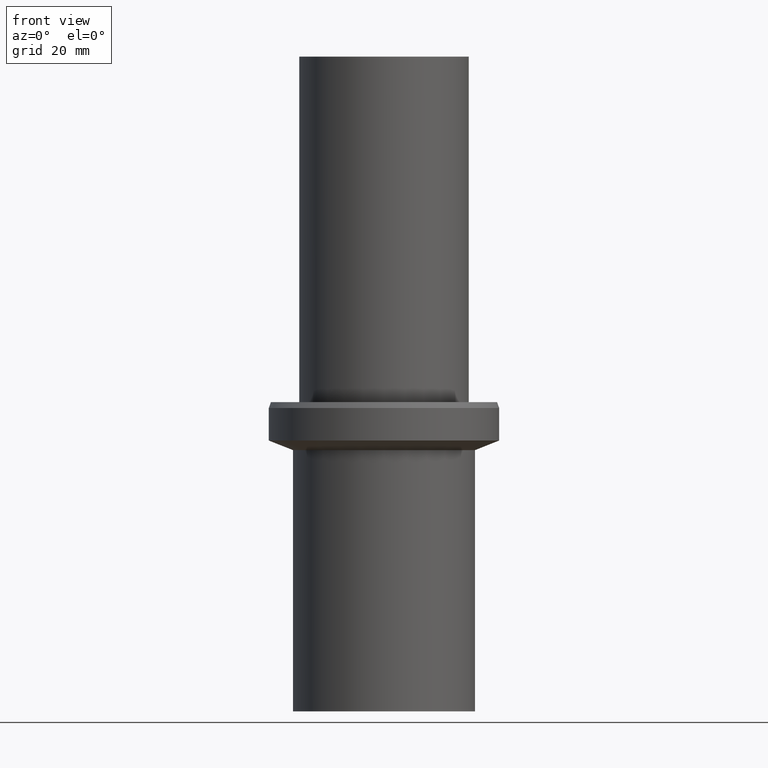
[diagram: clean part render]
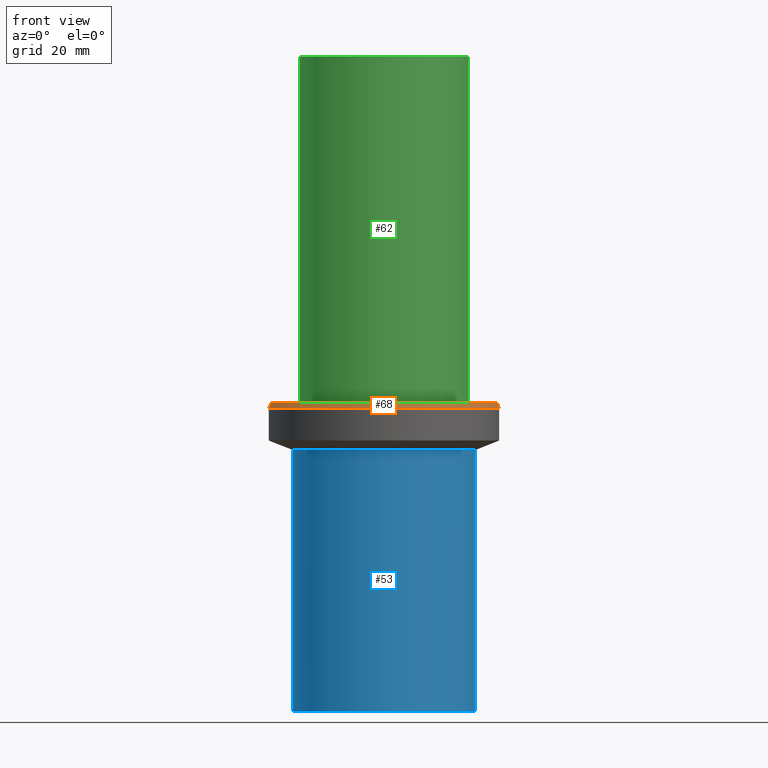
[diagram: same view with three faces highlighted in distinct colors, each labeled with its STEP entity id]
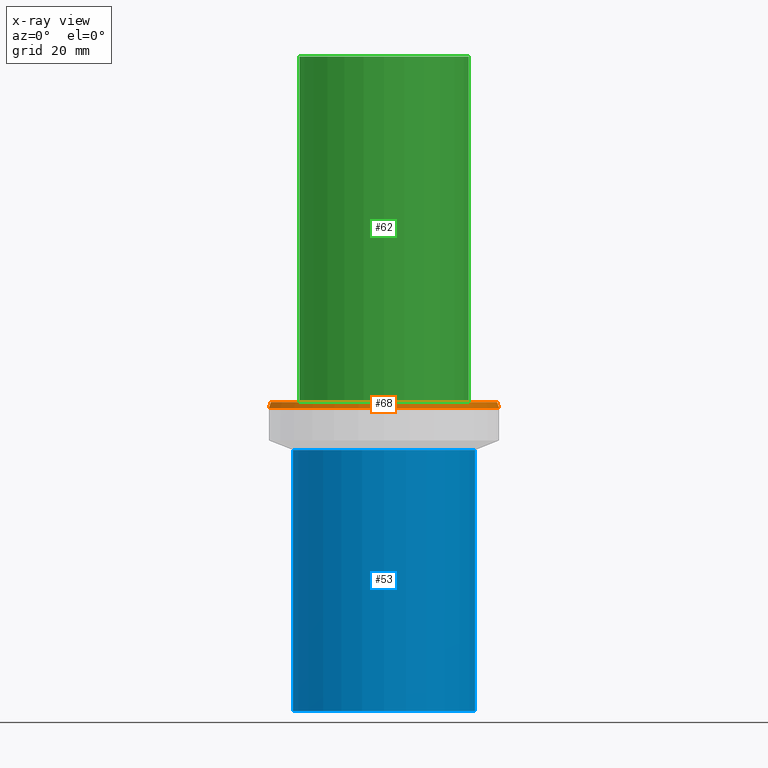
[diagram: x-ray of the same camera — body ghosted, the three highlighted faces saturated]
A machine part, front view with three faces highlighted in distinct colors.
The next image is the same camera in x-ray (body ghosted, the three faces saturated) — at least one of them is partly hidden behind the body in this view.
Their STEP definitions:

[orange] entity #68 — the highlighted conical surface has half-angle 20 deg.
#46=EDGE_CURVE('Unnamed[1]',#104,#104,#105,.T.);
#68=ADVANCED_FACE('Unnamed[1]',(#139,#140),#141,.T.);
#72=EDGE_CURVE('Unnamed[1]',#146,#146,#147,.T.);
#104=VERTEX_POINT('',#174);
#105=CIRCLE('',#175,26.9999999999945);
#139=FACE_BOUND('',#217,.T.);
#140=FACE_BOUND('',#218,.T.);
#141=CONICAL_SURFACE('',#219,26.7499999999955,0.349065850398426);
#146=VERTEX_POINT('',#226);
#147=CIRCLE('',#227,26.4999999999965);
#174=CARTESIAN_POINT('',(-4.35522741122329E-015,26.9999999999945,71.126261290285));
#175=AXIS2_PLACEMENT_3D('',#248,#249,#250);
#217=EDGE_LOOP('',(#288));
#218=EDGE_LOOP('',(#289));
#219=AXIS2_PLACEMENT_3D('',#290,#291,#292);
#226=CARTESIAN_POINT('',(-4.43934464690969E-015,26.4999999999965,72.5000000000087));
#227=AXIS2_PLACEMENT_3D('',#296,#297,#298);
#248=CARTESIAN_POINT('',(-4.35522741122329E-015,-8.71045482244658E-015,71.126261290285));
#249=DIRECTION('',(6.12323399573677E-017,1.22464679914748E-016,-1.0));
#250=DIRECTION('',(-1.23259516440775E-032,1.0,1.22464679914748E-016));
#288=ORIENTED_EDGE('',*,*,#46,.F.);
#289=ORIENTED_EDGE('',*,*,#72,.T.);
#290=CARTESIAN_POINT('',(-4.39728602906649E-015,-8.79457205813298E-015,71.8131306451468));
#291=DIRECTION('',(6.12323399573677E-017,1.22464679914749E-016,-1.0));
#292=DIRECTION('',(-1.2325951644077E-032,1.0,1.22464679914749E-016));
#296=CARTESIAN_POINT('',(-4.43934464690969E-015,-8.87868929381937E-015,72.5000000000087));
#297=DIRECTION('',(6.12323399573676E-017,1.2246467991475E-016,-1.0));
#298=DIRECTION('',(-1.23259516440799E-032,1.0,1.2246467991475E-016));

[blue] entity #53 — the highlighted cylindrical surface (bore or boss wall) has radius 21.5 mm, axis along (0, 0, -1).
#50=EDGE_CURVE('Unnamed[1]',#110,#110,#111,.T.);
#53=ADVANCED_FACE('Unnamed[1]',(#114,#115),#116,.T.);
#77=EDGE_CURVE('Unnamed[1]',#153,#153,#154,.T.);
#110=VERTEX_POINT('',#182);
#111=CIRCLE('',#183,21.4999999999993);
#114=FACE_BOUND('',#187,.T.);
#115=FACE_BOUND('',#188,.T.);
#116=CYLINDRICAL_SURFACE('',#189,21.4999999999997);
#153=VERTEX_POINT('',#235);
#154=CIRCLE('',#236,21.5000000000001);
#182=CARTESIAN_POINT('',(0.0,21.4999999999993,0.0));
#183=AXIS2_PLACEMENT_3D('',#254,#255,#256);
#187=EDGE_LOOP('',(#258));
#188=EDGE_LOOP('',(#259));
#189=AXIS2_PLACEMENT_3D('',#260,#261,#262);
#235=CARTESIAN_POINT('',(-3.75102900207456E-015,21.5000000000001,61.2589524536573));
#236=AXIS2_PLACEMENT_3D('',#304,#305,#306);
#254=CARTESIAN_POINT('',(0.0,0.0,0.0));
#255=DIRECTION('',(6.12323399573676E-017,1.22464679914722E-016,-1.0));
#256=DIRECTION('',(-1.23259516440787E-032,1.0,1.22464679914722E-016));
#258=ORIENTED_EDGE('',*,*,#50,.F.);
#259=ORIENTED_EDGE('',*,*,#77,.T.);
#260=CARTESIAN_POINT('',(-1.87551450103728E-015,-3.75102900207456E-015,30.6294762268286));
#261=DIRECTION('',(6.12323399573677E-017,1.2246467991472E-016,-1.0));
#262=DIRECTION('',(-1.23259516440785E-032,1.0,1.2246467991472E-016));
#304=CARTESIAN_POINT('',(-3.75102900207456E-015,-7.50205800414912E-015,61.2589524536573));
#305=DIRECTION('',(6.12323399573677E-017,1.22464679914718E-016,-1.0));
#306=DIRECTION('',(-1.23259516440782E-032,1.0,1.22464679914718E-016));

[green] entity #62 — the highlighted cylindrical surface (bore or boss wall) has radius 20 mm, axis along (0, 0, -1).
#62=ADVANCED_FACE('Unnamed[1]',(#129,#130),#131,.T.);
#70=EDGE_CURVE('Unnamed[1]',#143,#143,#144,.T.);
#79=EDGE_CURVE('Unnamed[1]',#156,#156,#157,.T.);
#129=FACE_BOUND('',#205,.T.);
#130=FACE_BOUND('',#206,.T.);
#131=CYLINDRICAL_SURFACE('',#207,20.0000000000027);
#143=VERTEX_POINT('',#222);
#144=CIRCLE('',#223,20.0000000000027);
#156=VERTEX_POINT('',#239);
#157=CIRCLE('',#240,20.0000000000027);
#205=EDGE_LOOP('',(#276));
#206=EDGE_LOOP('',(#277));
#207=AXIS2_PLACEMENT_3D('',#278,#279,#280);
#222=CARTESIAN_POINT('',(-9.39916418345641E-015,20.0000000000027,153.500000000008));
#223=AXIS2_PLACEMENT_3D('',#293,#294,#295);
#239=CARTESIAN_POINT('',(-4.43934464690969E-015,20.0000000000027,72.5000000000087));
#240=AXIS2_PLACEMENT_3D('',#307,#308,#309);
#276=ORIENTED_EDGE('',*,*,#79,.F.);
#277=ORIENTED_EDGE('',*,*,#70,.T.);
#278=CARTESIAN_POINT('',(-6.91925441518305E-015,-1.38385088303661E-014,113.000000000008));
#279=DIRECTION('',(6.12323399573677E-017,1.22464679914744E-016,-1.0));
#280=DIRECTION('',(-1.23259516440789E-032,1.0,1.22464679914744E-016));
#293=CARTESIAN_POINT('',(-9.39916418345641E-015,-1.87983283669128E-014,153.500000000008));
#294=DIRECTION('',(6.12323399573677E-017,1.22464679914744E-016,-1.0));
#295=DIRECTION('',(-1.23259516440789E-032,1.0,1.22464679914744E-016));
#307=CARTESIAN_POINT('',(-4.43934464690969E-015,-8.87868929381937E-015,72.5000000000087));
#308=DIRECTION('',(6.12323399573677E-017,1.22464679914744E-016,-1.0));
#309=DIRECTION('',(-1.23259516440789E-032,1.0,1.22464679914744E-016));